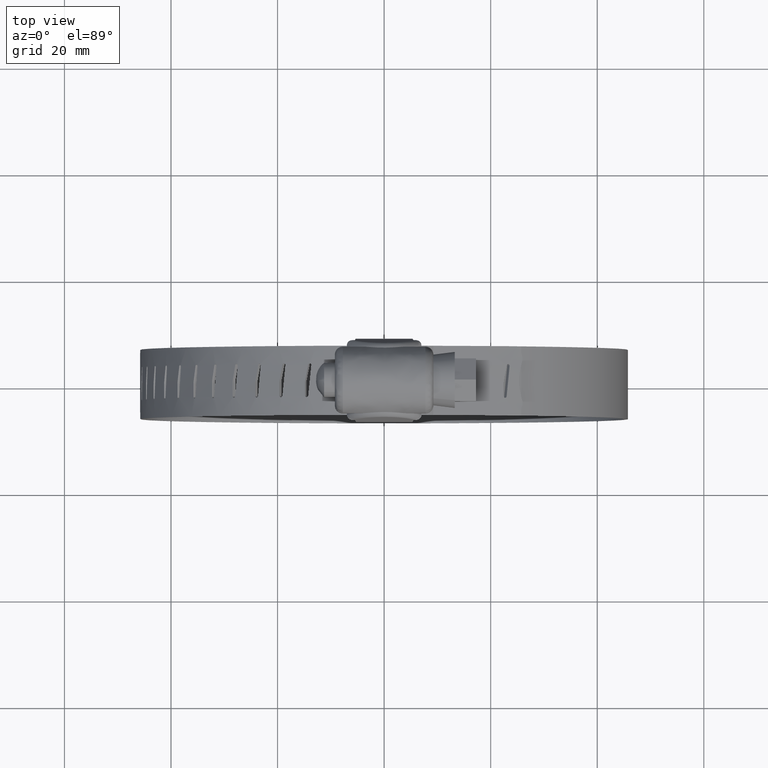
[diagram: clean part render]
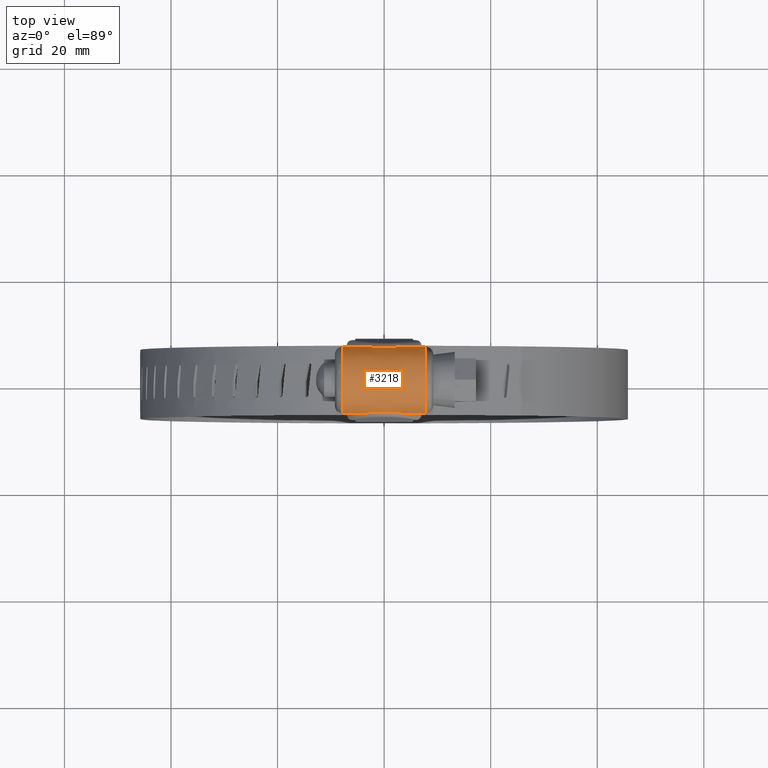
[diagram: same view with one face highlighted and labeled with its STEP entity id]
A machine part, top view. The second image highlights one B-rep face of the part: STEP entity #3218.
In plain terms, the highlighted face is a freeform B-spline surface patch.
Its self-contained STEP definition (entity closure, byte-faithful):
#1562=CARTESIAN_POINT('',(-3.766983245140355,-6.249999633170980,16.577121365332999));
#1563=VERTEX_POINT('',#1562);
#1673=CARTESIAN_POINT('',(3.766983245140355,-6.249999633170980,16.577121365332999));
#1674=VERTEX_POINT('',#1673);
#1682=CARTESIAN_POINT('',(-3.766983245140355,-6.249999633170980,16.577121365332999));
#1683=CARTESIAN_POINT('',(-3.478831496909463,-6.229233364205876,16.739128154655241));
#1684=CARTESIAN_POINT('',(-3.183300914378316,-6.204570008767342,16.882148632117168));
#1685=CARTESIAN_POINT('',(-2.576808892005547,-6.155228093785371,17.130036402120751));
#1686=CARTESIAN_POINT('',(-2.265836634976381,-6.130547265610534,17.234876518080021));
#1687=CARTESIAN_POINT('',(-1.866693869858923,-6.103751019367197,17.340919599546389));
#1688=CARTESIAN_POINT('',(-1.786486061357972,-6.098601892761600,17.360832235081901));
#1689=CARTESIAN_POINT('',(-1.626024433981459,-6.088846631766009,17.397907521513719));
#1690=CARTESIAN_POINT('',(-1.545665445436081,-6.084233341677489,17.415098594033861));
#1691=CARTESIAN_POINT('',(-1.304205280765513,-6.071283367227001,17.462673344400940));
#1692=CARTESIAN_POINT('',(-1.142721123573348,-6.063841070201703,17.489062200122419));
#1693=CARTESIAN_POINT('',(-0.656740159557208,-6.045693866015511,17.552452619586020));
#1694=CARTESIAN_POINT('',(-0.330719706065374,-6.039235105378521,17.573749912531952));
#1695=CARTESIAN_POINT('',(0.161419786626403,-6.039184386857341,17.573920279852860));
#1696=CARTESIAN_POINT('',(0.325985564198005,-6.040757096750824,17.568663909435760));
#1697=CARTESIAN_POINT('',(0.573631993009526,-6.045493593546023,17.552599085312352));
#1698=CARTESIAN_POINT('',(0.656241352251390,-6.047467871330164,17.545878086249040));
#1699=CARTESIAN_POINT('',(0.820475667525163,-6.052146371881373,17.529813216404978));
#1700=CARTESIAN_POINT('',(0.902253417529042,-6.054853191231874,17.520460500731989));
#1701=CARTESIAN_POINT('',(1.309472620170547,-6.070102513587345,17.467179843144940));
#1702=CARTESIAN_POINT('',(1.629917328613110,-6.087864840067938,17.403768142886481));
#1703=CARTESIAN_POINT('',(2.260627271324118,-6.130187882777850,17.236317853900928));
#1704=CARTESIAN_POINT('',(2.570888658853245,-6.154751397064583,17.132263968381999));
#1705=CARTESIAN_POINT('',(3.028839962946760,-6.192001216301294,16.945374784512900));
#1706=CARTESIAN_POINT('',(3.179777303179230,-6.204428908061730,16.878107182095970));
#1707=CARTESIAN_POINT('',(3.476686108309584,-6.228226204638982,16.734530296358798));
#1708=CARTESIAN_POINT('',(3.622917516897374,-6.239617229855899,16.658119055673680));
#1709=CARTESIAN_POINT('',(3.766983245140355,-6.249999633170980,16.577121365332999));
#1710=B_SPLINE_CURVE_WITH_KNOTS('',3,(#1682,#1683,#1684,#1685,#1686,#1687,#1688,#1689,#1690,#1691,#1692,#1693,#1694,#1695,#1696,#1697,#1698,#1699,#1700,#1701,#1702,#1703,#1704,#1705,#1706,#1707,#1708,#1709),.UNSPECIFIED.,.F.,.U.,(4,2,2,2,2,2,2,2,2,2,2,2,2,4),(0.000000039906754,0.125000000000001,0.250000000000001,0.281250000000001,0.312500000000001,0.375000000000001,0.500000000000001,0.562500000000001,0.593750000000001,0.625000000000000,0.750000000000000,0.875000000000000,0.937500000000000,0.999999982435041),.UNSPECIFIED.);
#1711=EDGE_CURVE('',#1563,#1674,#1710,.T.);
#1902=CARTESIAN_POINT('',(-3.767731017053410,6.249999633170980,16.577121365332999));
#1903=VERTEX_POINT('',#1902);
#1911=CARTESIAN_POINT('',(3.767731017053410,6.249999633170980,16.577121365332999));
#1912=VERTEX_POINT('',#1911);
#1913=CARTESIAN_POINT('',(3.767731017053410,6.249999633170980,16.577121365332999));
#1914=CARTESIAN_POINT('',(3.479497733507518,6.229237709105721,16.739094258291651));
#1915=CARTESIAN_POINT('',(3.183884050679524,6.204583222070062,16.882071151559519));
#1916=CARTESIAN_POINT('',(2.577243934754033,6.155257050299552,17.129902017543969));
#1917=CARTESIAN_POINT('',(2.266206147951572,6.130582696073145,17.234727400421061));
#1918=CARTESIAN_POINT('',(1.866991587071622,6.103790234875439,17.340766625409820));
#1919=CARTESIAN_POINT('',(1.786771470837745,6.098641773924828,17.360678763914390));
#1920=CARTESIAN_POINT('',(1.626284023453253,6.088887352445290,17.397754646818960));
#1921=CARTESIAN_POINT('',(1.545912167912042,6.084274283725710,17.414946625872581));
#1922=CARTESIAN_POINT('',(1.304413467685331,6.071324521135703,17.462525250646319));
#1923=CARTESIAN_POINT('',(1.142903704963588,6.063881763437935,17.488918202284239));
#1924=CARTESIAN_POINT('',(0.656845720759579,6.045732683460419,17.552320710697689));
#1925=CARTESIAN_POINT('',(0.330773580215899,6.039272260056391,17.573625094178219));
#1926=CARTESIAN_POINT('',(-0.161444854682112,6.039221514861135,17.573795563976041));
#1927=CARTESIAN_POINT('',(-0.326037165918512,6.040794574774885,17.568537633646770));
#1928=CARTESIAN_POINT('',(-0.573723678317318,6.045531948734165,17.552468569044731));
#1929=CARTESIAN_POINT('',(-0.656346915220894,6.047506583847865,17.545745815254921));
#1930=CARTESIAN_POINT('',(-0.820608736505639,6.052185828560140,17.529677062264259));
#1931=CARTESIAN_POINT('',(-0.902400225254582,6.054893035526168,17.520322214310770));
#1932=CARTESIAN_POINT('',(-1.309688241338812,6.070144131077192,17.467030690373669));
#1933=CARTESIAN_POINT('',(-1.630188360697988,6.087907219618561,17.403609516303838));
#1934=CARTESIAN_POINT('',(-2.261015828429809,6.130224851233542,17.236162525183840));
#1935=CARTESIAN_POINT('',(-2.571339628588592,6.154781890041164,17.132122576332680));
#1936=CARTESIAN_POINT('',(-3.029391561703454,6.192018955972971,16.945279975485011));
#1937=CARTESIAN_POINT('',(-3.180366883374803,6.204442304778198,16.878030458831791));
#1938=CARTESIAN_POINT('',(-3.477353567144340,6.228231820699066,16.734492306269210));
#1939=CARTESIAN_POINT('',(-3.623625442391634,6.239619468304403,16.658101592606808));
#1940=CARTESIAN_POINT('',(-3.767731017053410,6.249999633170980,16.577121365332999));
#1941=B_SPLINE_CURVE_WITH_KNOTS('',3,(#1913,#1914,#1915,#1916,#1917,#1918,#1919,#1920,#1921,#1922,#1923,#1924,#1925,#1926,#1927,#1928,#1929,#1930,#1931,#1932,#1933,#1934,#1935,#1936,#1937,#1938,#1939,#1940),.UNSPECIFIED.,.F.,.U.,(4,2,2,2,2,2,2,2,2,2,2,2,2,4),(0.000000039879375,0.125000000000000,0.250000000000001,0.281250000000000,0.312500000000000,0.375000000000000,0.500000000000000,0.562500000000000,0.593749999999999,0.624999999999999,0.749999999999999,0.875000000000000,0.937500000000000,0.999999982445228),.UNSPECIFIED.);
#1942=EDGE_CURVE('',#1912,#1903,#1941,.T.);
#2444=CARTESIAN_POINT('',(7.750000000000000,6.249999633170980,16.577121365332999));
#2445=VERTEX_POINT('',#2444);
#2501=CARTESIAN_POINT('',(7.750000000000000,-6.249999633170980,16.577121365332999));
#2502=VERTEX_POINT('',#2501);
#2535=CARTESIAN_POINT('',(7.750000000000000,-6.249999633170980,16.577121365332999));
#2536=CARTESIAN_POINT('',(7.750000000000005,-6.198832650688900,16.976469080634612));
#2537=CARTESIAN_POINT('',(7.749999999999997,-5.977600268388308,17.950993295023530));
#2538=CARTESIAN_POINT('',(7.750000000000024,-5.351040271323937,19.215476612248789));
#2539=CARTESIAN_POINT('',(7.749999999999983,-4.480316597215094,20.255313106252292));
#2540=CARTESIAN_POINT('',(7.749999999999983,-3.548115339459546,21.030202166760368));
#2541=CARTESIAN_POINT('',(7.750000000000063,-2.524816453885301,21.591601395400328));
#2542=CARTESIAN_POINT('',(7.750000000000076,-1.279909805017569,21.990490243347370));
#2543=CARTESIAN_POINT('',(7.749999999999661,-0.141763711915740,22.112909311248242));
#2544=CARTESIAN_POINT('',(7.750000000000264,1.159764578200235,22.009959427872339));
#2545=CARTESIAN_POINT('',(7.749999999999859,2.263629566327651,21.703759860020821));
#2546=CARTESIAN_POINT('',(7.750000000000155,3.574622932630124,21.031999983307550));
#2547=CARTESIAN_POINT('',(7.749999999999892,4.710682127960460,20.076920779593930));
#2548=CARTESIAN_POINT('',(7.750000000000123,5.776883799058723,18.521806696516691));
#2549=CARTESIAN_POINT('',(7.749999999999895,6.157224886392631,17.305485521665151));
#2550=CARTESIAN_POINT('',(7.750000000000000,6.249999633170980,16.577121365332999));
#2551=B_SPLINE_CURVE_WITH_KNOTS('',3,(#2535,#2536,#2537,#2538,#2539,#2540,#2541,#2542,#2543,#2544,#2545,#2546,#2547,#2548,#2549,#2550),.UNSPECIFIED.,.F.,.U.,(4,1,1,1,1,1,1,1,1,1,1,1,1,4),(0.000000565946408,1.207859227244089,2.984125697016422,4.192015272651476,5.257802809443890,6.607813191639300,7.673597397073069,9.165483802918146,10.018115260684670,11.581299440242301,12.576013119542790,14.423376506076471,15.986561276152470,18.189077700279860),.UNSPECIFIED.);
#2552=EDGE_CURVE('',#2502,#2445,#2551,.T.);
#2636=CARTESIAN_POINT('',(-7.749999999999810,6.249999633170980,16.577121365332999));
#2637=VERTEX_POINT('',#2636);
#2694=CARTESIAN_POINT('',(-7.750000000000000,-6.249999633170980,16.577121365332999));
#2695=VERTEX_POINT('',#2694);
#2707=CARTESIAN_POINT('',(-7.749999999999810,6.249999633170980,16.577121365332999));
#2708=CARTESIAN_POINT('',(-7.749999999999843,6.174952998430666,17.164445805474749));
#2709=CARTESIAN_POINT('',(-7.749999999999790,5.882760928850918,18.225195465024090));
#2710=CARTESIAN_POINT('',(-7.749999999999940,5.102068632997399,19.564548697338910));
#2711=CARTESIAN_POINT('',(-7.749999999999875,4.205817263474816,20.520127345414519));
#2712=CARTESIAN_POINT('',(-7.749999999999998,3.146282674069091,21.285929727684518));
#2713=CARTESIAN_POINT('',(-7.749999999999906,2.124074271045846,21.745905393498290));
#2714=CARTESIAN_POINT('',(-7.749999999999994,0.995354166180417,22.024958829501958));
#2715=CARTESIAN_POINT('',(-7.750000000000146,-0.071450384213625,22.115419039082379));
#2716=CARTESIAN_POINT('',(-7.749999999999981,-1.419868825352030,21.970570275639449));
#2717=CARTESIAN_POINT('',(-7.750000000000028,-2.796907888683417,21.494820521967661));
#2718=CARTESIAN_POINT('',(-7.750000000000067,-4.152962683103360,20.605103216170690));
#2719=CARTESIAN_POINT('',(-7.749999999999953,-5.116014719816892,19.542541785541822));
#2720=CARTESIAN_POINT('',(-7.750000000000213,-5.890757553289859,18.178412185855588));
#2721=CARTESIAN_POINT('',(-7.749999999999774,-6.168962457270088,17.211437488623059));
#2722=CARTESIAN_POINT('',(-7.750000000000000,-6.249999633170980,16.577121365332999));
#2723=B_SPLINE_CURVE_WITH_KNOTS('',3,(#2707,#2708,#2709,#2710,#2711,#2712,#2713,#2714,#2715,#2716,#2717,#2718,#2719,#2720,#2721,#2722),.UNSPECIFIED.,.F.,.U.,(4,1,1,1,1,1,1,1,1,1,1,1,1,4),(0.000000565955634,1.776221225371838,3.268326034720722,4.618324991942519,5.684113536907496,7.176198796559410,7.957766560394530,9.165483802920830,10.373428531348090,12.007598177232101,13.499706240136470,15.204971098349150,16.270756984120201,18.189077700279881),.UNSPECIFIED.);
#2724=EDGE_CURVE('',#2637,#2695,#2723,.T.);
#3150=CARTESIAN_POINT('',(7.750000000000000,-6.249999633170980,16.577121365332999));
#3151=CARTESIAN_POINT('',(3.766983245140355,-6.249999633170980,16.577121365332999));
#3152=QUASI_UNIFORM_CURVE('',1,(#3150,#3151),.UNSPECIFIED.,.F.,.U.);
#3153=EDGE_CURVE('',#2502,#1674,#3152,.T.);
#3172=CARTESIAN_POINT('',(-3.766983245140355,-6.249999633170980,16.577121365332999));
#3173=CARTESIAN_POINT('',(-7.750000000000000,-6.249999633170980,16.577121365332999));
#3174=QUASI_UNIFORM_CURVE('',1,(#3172,#3173),.UNSPECIFIED.,.F.,.U.);
#3175=EDGE_CURVE('',#1563,#2695,#3174,.T.);
#3182=CARTESIAN_POINT('',(8.137500000000001,6.256752797267127,16.522550016851341));
#3183=CARTESIAN_POINT('',(-8.147187500000037,6.256752797267127,16.522550016851341));
#3184=CARTESIAN_POINT('',(8.137500000000001,5.578620881440008,22.205784116358405));
#3185=CARTESIAN_POINT('',(-8.147187500000037,5.578620881440008,22.205784116358405));
#3186=CARTESIAN_POINT('',(8.137500000000001,-0.143444799420466,22.075488034368480));
#3187=CARTESIAN_POINT('',(-8.147187500000037,-0.143444799420466,22.075488034368480));
#3188=CARTESIAN_POINT('',(8.137500000000001,-5.865510480280938,21.945191952378561));
#3189=CARTESIAN_POINT('',(-8.147187500000037,-5.865510480280938,21.945191952378561));
#3190=CARTESIAN_POINT('',(8.137500000000001,-6.284249946758260,16.236981200813990));
#3191=CARTESIAN_POINT('',(-8.147187500000037,-6.284249946758260,16.236981200813990));
#3199=(BOUNDED_SURFACE()B_SPLINE_SURFACE(1,2,((#3182,#3184,#3186,#3188,#3190),(#3183,#3185,#3187,#3189,#3191)),.UNSPECIFIED.,.F.,.F.,.U.)B_SPLINE_SURFACE_WITH_KNOTS((2,2),(3,2,3),(0.0,16.284687500000040),(0.0,9.738261264178698,19.476522528357400),.UNSPECIFIED.)GEOMETRIC_REPRESENTATION_ITEM()RATIONAL_B_SPLINE_SURFACE(((1.0,0.740218127486832,1.0,0.740218127486832,1.0),(1.0,0.740218127486832,1.0,0.740218127486832,1.0)))REPRESENTATION_ITEM('')SURFACE());
#3200=CARTESIAN_POINT('',(7.750000000000000,6.249999633170980,16.577121365332999));
#3201=CARTESIAN_POINT('',(3.767731017053410,6.249999633170980,16.577121365332999));
#3202=QUASI_UNIFORM_CURVE('',1,(#3200,#3201),.UNSPECIFIED.,.F.,.U.);
#3203=EDGE_CURVE('',#2445,#1912,#3202,.T.);
#3204=ORIENTED_EDGE('',*,*,#3203,.T.);
#3205=ORIENTED_EDGE('',*,*,#1942,.T.);
#3206=CARTESIAN_POINT('',(-3.767731017053410,6.249999633170980,16.577121365332999));
#3207=CARTESIAN_POINT('',(-7.749999999999810,6.249999633170980,16.577121365332999));
#3208=QUASI_UNIFORM_CURVE('',1,(#3206,#3207),.UNSPECIFIED.,.F.,.U.);
#3209=EDGE_CURVE('',#1903,#2637,#3208,.T.);
#3210=ORIENTED_EDGE('',*,*,#3209,.T.);
#3211=ORIENTED_EDGE('',*,*,#2724,.T.);
#3212=ORIENTED_EDGE('',*,*,#3175,.F.);
#3213=ORIENTED_EDGE('',*,*,#1711,.T.);
#3214=ORIENTED_EDGE('',*,*,#3153,.F.);
#3215=ORIENTED_EDGE('',*,*,#2552,.T.);
#3216=EDGE_LOOP('',(#3204,#3205,#3210,#3211,#3212,#3213,#3214,#3215));
#3217=FACE_OUTER_BOUND('',#3216,.T.);
#3218=ADVANCED_FACE('',(#3217),#3199,.T.);